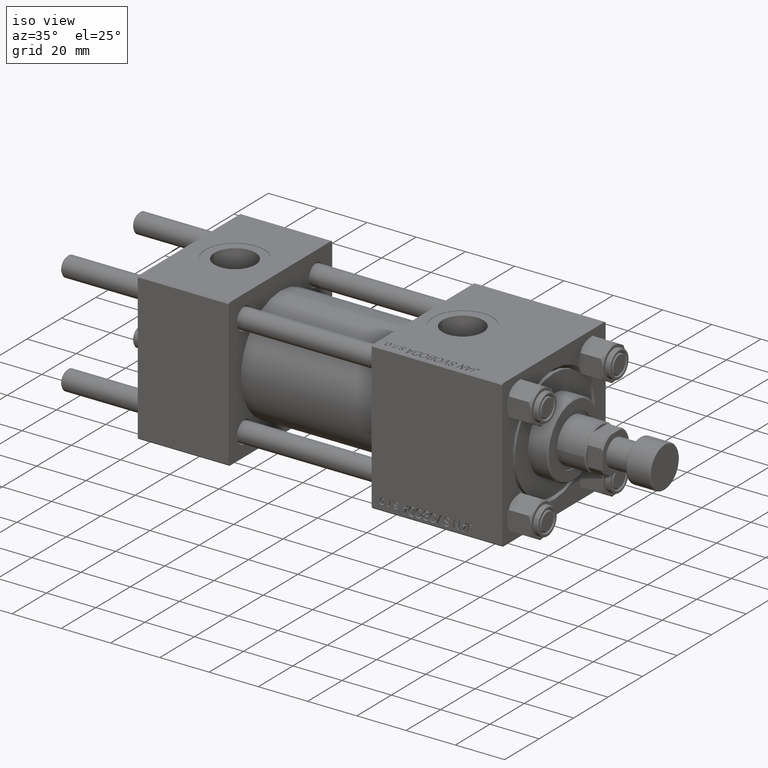
[diagram: clean part render]
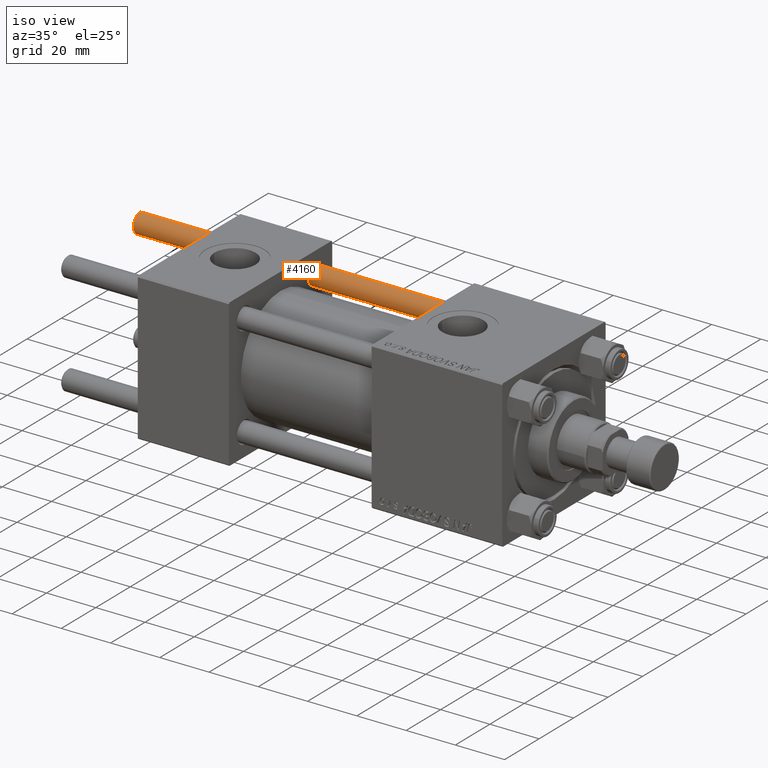
[diagram: same view with one face highlighted and labeled with its STEP entity id]
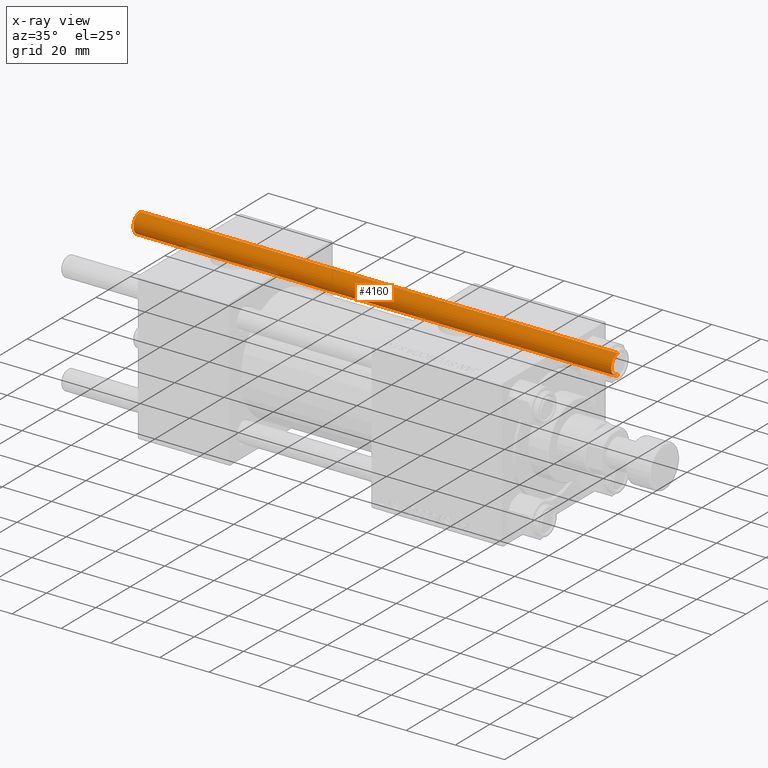
[diagram: x-ray of the same camera — body ghosted, the highlighted face saturated]
A machine part, iso view. The second image highlights one B-rep face of the part: STEP entity #4160.
The next image is the same camera in x-ray: the body ghosted, the highlighted face saturated — about 3% of this face is hidden behind the body in this view.
In plain terms, the highlighted cylindrical surface (edge-blend (fillet) strip) has radius 4 mm, axis along (-1, -0, -0).
Its self-contained STEP definition (entity closure, byte-faithful):
#4045 = AXIS2_PLACEMENT_3D ( 'NONE', #39119, #45996, #4296 ) ;
#4160 = ADVANCED_FACE ( 'NONE', ( #40067 ), #31707, .T. ) ;
#4296 = DIRECTION ( 'NONE',  ( 1.000000000000000000, 0.000000000000000000, 0.000000000000000000 ) ) ;
#6763 = EDGE_LOOP ( 'NONE', ( #38485, #7204, #39417, #37362 ) ) ;
#7204 = ORIENTED_EDGE ( 'NONE', *, *, #34315, .T. ) ;
#11026 = CARTESIAN_POINT ( 'NONE',  ( 4.000000000000000000, 4.898587196589412829E-16, 194.5000000000000568 ) ) ;
#12498 = DIRECTION ( 'NONE',  ( -0.000000000000000000, -0.000000000000000000, -1.000000000000000000 ) ) ;
#15877 = CIRCLE ( 'NONE', #44292, 4.000000000000000000 ) ;
#16730 = EDGE_CURVE ( 'NONE', #26918, #30169, #19384, .T. ) ;
#18316 = CARTESIAN_POINT ( 'NONE',  ( 4.000000000000000000, 4.898587196589412829E-16, 195.0000000000000000 ) ) ;
#18731 = VECTOR ( 'NONE', #12498, 1000.000000000000000 ) ;
#19384 = LINE ( 'NONE', #35645, #18731 ) ;
#19756 = CARTESIAN_POINT ( 'NONE',  ( 0.000000000000000000, 0.000000000000000000, 195.0000000000000000 ) ) ;
#20848 = AXIS2_PLACEMENT_3D ( 'NONE', #19756, #47461, #39332 ) ;
#22481 = CARTESIAN_POINT ( 'NONE',  ( -4.000000000000000000, 0.000000000000000000, 194.5000000000000568 ) ) ;
#26036 = VERTEX_POINT ( 'NONE', #11026 ) ;
#26438 = DIRECTION ( 'NONE',  ( -0.000000000000000000, -0.000000000000000000, -1.000000000000000000 ) ) ;
#26918 = VERTEX_POINT ( 'NONE', #22481 ) ;
#27647 = CARTESIAN_POINT ( 'NONE',  ( 4.000000000000000000, 4.898587196589412829E-16, 0.5000000000000004441 ) ) ;
#28298 = DIRECTION ( 'NONE',  ( 1.000000000000000000, 0.000000000000000000, 0.000000000000000000 ) ) ;
#28906 = VECTOR ( 'NONE', #26438, 1000.000000000000000 ) ;
#29186 = CIRCLE ( 'NONE', #4045, 4.000000000000000000 ) ;
#30169 = VERTEX_POINT ( 'NONE', #47829 ) ;
#31707 = CYLINDRICAL_SURFACE ( 'NONE', #20848, 4.000000000000000000 ) ;
#34315 = EDGE_CURVE ( 'NONE', #26036, #26918, #15877, .T. ) ;
#34328 = LINE ( 'NONE', #18316, #28906 ) ;
#34939 = EDGE_CURVE ( 'NONE', #26036, #35362, #34328, .T. ) ;
#35362 = VERTEX_POINT ( 'NONE', #27647 ) ;
#35439 = CARTESIAN_POINT ( 'NONE',  ( 0.000000000000000000, 0.000000000000000000, 194.5000000000000568 ) ) ;
#35645 = CARTESIAN_POINT ( 'NONE',  ( -4.000000000000000000, 0.000000000000000000, 195.0000000000000000 ) ) ;
#37362 = ORIENTED_EDGE ( 'NONE', *, *, #47897, .T. ) ;
#38485 = ORIENTED_EDGE ( 'NONE', *, *, #34939, .F. ) ;
#39119 = CARTESIAN_POINT ( 'NONE',  ( 0.000000000000000000, 0.000000000000000000, 0.5000000000000004441 ) ) ;
#39332 = DIRECTION ( 'NONE',  ( -1.000000000000000000, 0.000000000000000000, 0.000000000000000000 ) ) ;
#39417 = ORIENTED_EDGE ( 'NONE', *, *, #16730, .T. ) ;
#39989 = DIRECTION ( 'NONE',  ( 0.000000000000000000, 0.000000000000000000, -1.000000000000000000 ) ) ;
#40067 = FACE_OUTER_BOUND ( 'NONE', #6763, .T. ) ;
#44292 = AXIS2_PLACEMENT_3D ( 'NONE', #35439, #39989, #28298 ) ;
#45996 = DIRECTION ( 'NONE',  ( -0.000000000000000000, -0.000000000000000000, 1.000000000000000000 ) ) ;
#47461 = DIRECTION ( 'NONE',  ( -0.000000000000000000, -0.000000000000000000, -1.000000000000000000 ) ) ;
#47829 = CARTESIAN_POINT ( 'NONE',  ( -4.000000000000000000, 0.000000000000000000, 0.5000000000000004441 ) ) ;
#47897 = EDGE_CURVE ( 'NONE', #30169, #35362, #29186, .T. ) ;